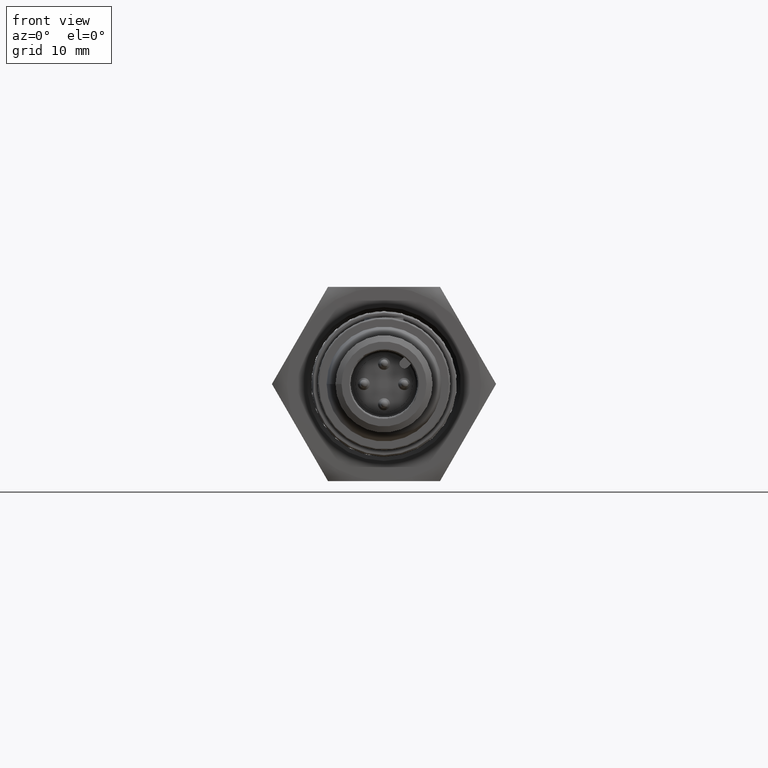
[diagram: clean part render]
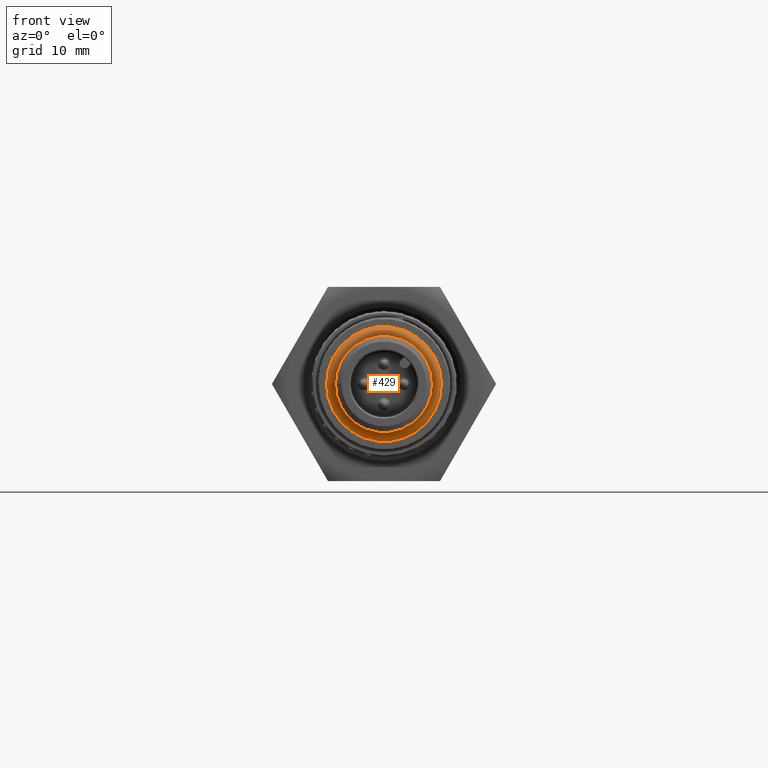
[diagram: same view with one face highlighted and labeled with its STEP entity id]
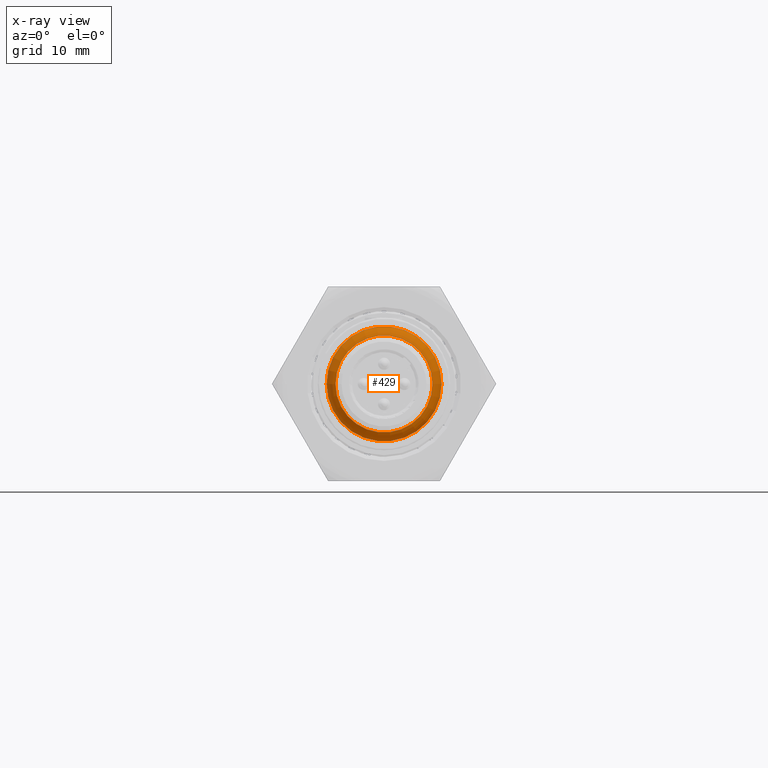
[diagram: x-ray of the same camera — body ghosted, the highlighted face saturated]
A machine part, front view. The second image highlights one B-rep face of the part: STEP entity #429.
The next image is the same camera in x-ray: the body ghosted, the highlighted face saturated — about 0% of this face is hidden behind the body in this view.
In plain terms, the highlighted toroidal blend (fillet) surface has major radius 5.1 mm and minor (blend) radius 2 mm.
Its self-contained STEP definition (entity closure, byte-faithful):
#148 = AXIS2_PLACEMENT_3D ( 'NONE', #3358, #286, #4453 ) ;
#286 = DIRECTION ( 'NONE',  ( 0.000000000000000000, 1.000000000000000000, 0.000000000000000000 ) ) ;
#425 = EDGE_LOOP ( 'NONE', ( #3559 ) ) ;
#429 = ADVANCED_FACE ( 'NONE', ( #2680, #984 ), #1583, .T. ) ;
#829 = CIRCLE ( 'NONE', #2264, 0.2362204724409449619 ) ;
#984 = FACE_OUTER_BOUND ( 'NONE', #3625, .T. ) ;
#1261 = DIRECTION ( 'NONE',  ( 0.000000000000000000, 1.000000000000000000, 0.000000000000000000 ) ) ;
#1510 = DIRECTION ( 'NONE',  ( -0.9999999999999997780, 0.000000000000000000, 2.077430199933397891E-08 ) ) ;
#1583 = TOROIDAL_SURFACE ( 'NONE', #148, 0.2007874015748031815, 0.07874015748031495954 ) ;
#1850 = VERTEX_POINT ( 'NONE', #3308 ) ;
#1975 = DIRECTION ( 'NONE',  ( -0.9999999999999997780, 0.000000000000000000, 2.077430199917491539E-08 ) ) ;
#2043 = CIRCLE ( 'NONE', #3800, 0.2795275590551181688 ) ;
#2144 = ORIENTED_EDGE ( 'NONE', *, *, #4104, .F. ) ;
#2156 = EDGE_CURVE ( 'NONE', #4234, #4234, #829, .T. ) ;
#2264 = AXIS2_PLACEMENT_3D ( 'NONE', #2480, #3866, #1510 ) ;
#2480 = CARTESIAN_POINT ( 'NONE',  ( 0.000000000000000000, -1.178741213149236300, -0.003432467006220472731 ) ) ;
#2680 = FACE_OUTER_BOUND ( 'NONE', #425, .T. ) ;
#2688 = CARTESIAN_POINT ( 'NONE',  ( 0.000000000000000000, -1.108424004096118187, -0.003432467006220472731 ) ) ;
#2819 = CARTESIAN_POINT ( 'NONE',  ( -0.2362204724409449064, -1.178741213149236300, -0.003432462098905039814 ) ) ;
#3308 = CARTESIAN_POINT ( 'NONE',  ( -0.2795275590551181133, -1.108424004096118187, -0.003432461199230543887 ) ) ;
#3358 = CARTESIAN_POINT ( 'NONE',  ( 0.000000000000000000, -1.108424004096118187, -0.003432467006220472731 ) ) ;
#3559 = ORIENTED_EDGE ( 'NONE', *, *, #2156, .T. ) ;
#3625 = EDGE_LOOP ( 'NONE', ( #2144 ) ) ;
#3800 = AXIS2_PLACEMENT_3D ( 'NONE', #2688, #1261, #1975 ) ;
#3866 = DIRECTION ( 'NONE',  ( 0.000000000000000000, 1.000000000000000000, 0.000000000000000000 ) ) ;
#4104 = EDGE_CURVE ( 'NONE', #1850, #1850, #2043, .T. ) ;
#4234 = VERTEX_POINT ( 'NONE', #2819 ) ;
#4453 = DIRECTION ( 'NONE',  ( -0.9999999999999997780, 0.000000000000000000, 2.077430199917491208E-08 ) ) ;